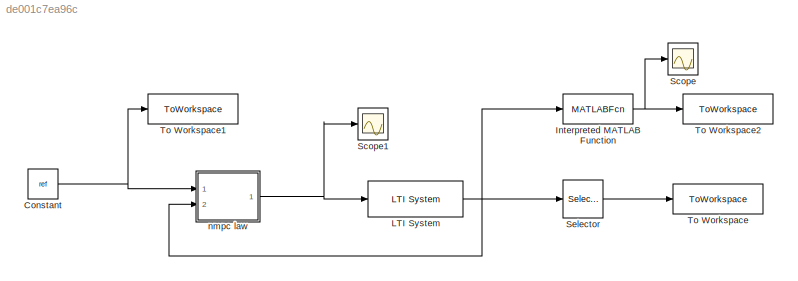
MODEL slx_de001c7ea96c
KIND model
CONFIG AbsTol = auto
CONFIG EnableMultiTasking = on
CONFIG FixedStep = 1
CONFIG MaxStep = auto
CONFIG MinStep = auto
CONFIG RelTol = 1e-3
CONFIG SampleTimeConstraint = Unconstrained
CONFIG Solver = ode45
CONFIG SolverName = ode45
CONFIG StartTime = 0.0
CONFIG StopTime = tfin
BLOCK [Constant] Constant
  Value = ref
BLOCK [MATLABFcn] Interpreted MATLAB Function
  MATLABFcn = constraint_function_template(u,u)
  Ports = [1, 1]
BLOCK [Reference] LTI System  REF=cstblocks/LTI System
  Ports = [1, 1]
  SourceBlock = cstblocks/LTI System
  SourceProductBaseCode = CT
  SourceProductName = Control System Toolbox
  SourceType = LTI Block
BLOCK [Scope] Scope
  Floating = off
  NumInputPorts = 1
  Ports = [1]
  ScopeSpecificationString = Simulink.scopes.TimeScopeBlockCfg('CurrentConfiguration', extmgr.ConfigurationSet(extmgr.Configuration('Core','General UI',true),extmgr.Configuration('Core','Source UI',true),extmgr.Configuration('Sources','WiredSimulink',true),extmgr.Configuration('Visuals','Time Domain',true,'SerializedDisplays',{struct('MinYLimReal','-550.09229','MaxYLimReal','50.82156','YLabelReal','','MinYLimMag',' 0.00000','...<+1440ch>
BLOCK [Scope] Scope1
  Floating = off
  NumInputPorts = 1
  Ports = [1]
  ScopeSpecificationString = Simulink.scopes.TimeScopeBlockCfg('CurrentConfiguration', extmgr.ConfigurationSet(extmgr.Configuration('Core','General UI',true),extmgr.Configuration('Core','Source UI',true),extmgr.Configuration('Sources','WiredSimulink',true,'DataLoggingVariableName','ScopeData1'),extmgr.Configuration('Visuals','Time Domain',true),extmgr.Configuration('Tools','Plot Navigation',true),extmgr.Configuration('Tools',...<+84ch>
BLOCK [Selector] Selector
  IndexOptions = Index vector (dialog)
  Indices = 1:3
  InputPortWidth = 6
  OutputSizes = 1
  Ports = [1, 1]
BLOCK [ToWorkspace] To Workspace
  FixptAsFi = on
  MaxDataPoints = inf
  Ports = [1]
  SampleTime = -1
  SaveFormat = Timeseries
  VariableName = y
BLOCK [ToWorkspace] To Workspace1
  FixptAsFi = on
  MaxDataPoints = inf
  Ports = [1]
  SampleTime = -1
  SaveFormat = Timeseries
  VariableName = ref_out
BLOCK [ToWorkspace] To Workspace2
  FixptAsFi = on
  MaxDataPoints = inf
  Ports = [1]
  SampleTime = -1
  SaveFormat = Timeseries
  VariableName = u_out
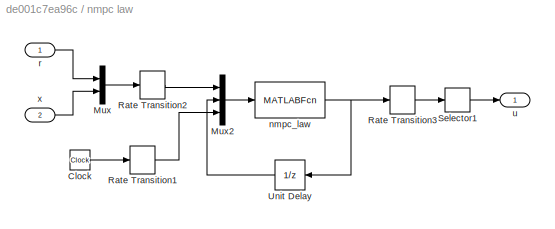
BLOCK [SubSystem] nmpc law
  Ports = [2, 1]
  RequestExecContextInheritance = off
BLOCK [Clock] nmpc law/Clock
BLOCK [Mux] nmpc law/Mux
  DisplayOption = bar
  Inputs = 2
  Ports = [2, 1]
BLOCK [Mux] nmpc law/Mux2
  DisplayOption = bar
  Inputs = 3
  Ports = [3, 1]
BLOCK [RateTransition] nmpc law/Rate Transition1
  OutPortSampleTime = K.Ts
BLOCK [RateTransition] nmpc law/Rate Transition2
  OutPortSampleTime = K.Ts
BLOCK [RateTransition] nmpc law/Rate Transition3
  OutPortSampleTime = 0
BLOCK [Selector] nmpc law/Selector1
  IndexOptions = Index vector (dialog)
  Indices = 1:K.nu
  InputPortWidth = K.nc
  OutputSizes = 1
  Ports = [1, 1]
BLOCK [UnitDelay] nmpc law/Unit Delay
  HasFrameUpgradeWarning = on
  InitialCondition = zeros(K.nc,1)
  SampleTime = K.Ts
BLOCK [MATLABFcn] nmpc law/nmpc_law
  MATLABFcn = nmpc_law(K,u)
  OutputDimensions = K.nc
  Ports = [1, 1]
BLOCK [Inport] nmpc law/r
  IconDisplay = Port number
BLOCK [Outport] nmpc law/u
  IconDisplay = Port number
  VectorParamsAs1DForOutWhenUnconnected = off
BLOCK [Inport] nmpc law/x
  IconDisplay = Port number
  Port = 2
NET Constant:1 -> To Workspace1:1, nmpc law:1
NET Interpreted MATLAB Function:1 -> Scope:1, To Workspace2:1
NET LTI System:1 -> Interpreted MATLAB Function:1, Selector:1, nmpc law:2
LINE Selector:1 -> To Workspace:1
LINE nmpc law/Clock:1 -> nmpc law/Rate Transition1:1
LINE nmpc law/Mux2:1 -> nmpc law/nmpc_law:1
LINE nmpc law/Mux:1 -> nmpc law/Rate Transition2:1
LINE nmpc law/Rate Transition1:1 -> nmpc law/Mux2:3
LINE nmpc law/Rate Transition2:1 -> nmpc law/Mux2:1
LINE nmpc law/Rate Transition3:1 -> nmpc law/Selector1:1
LINE nmpc law/Selector1:1 -> nmpc law/u:1
LINE nmpc law/Unit Delay:1 -> nmpc law/Mux2:2
NET nmpc law/nmpc_law:1 -> nmpc law/Rate Transition3:1, nmpc law/Unit Delay:1
LINE nmpc law/r:1 -> nmpc law/Mux:1
LINE nmpc law/x:1 -> nmpc law/Mux:2
NET nmpc law:1 -> LTI System:1, Scope1:1
note: NET lines group one-source signal fan-out (src -> all destinations, sorted); 1:1 wires keep LINE
